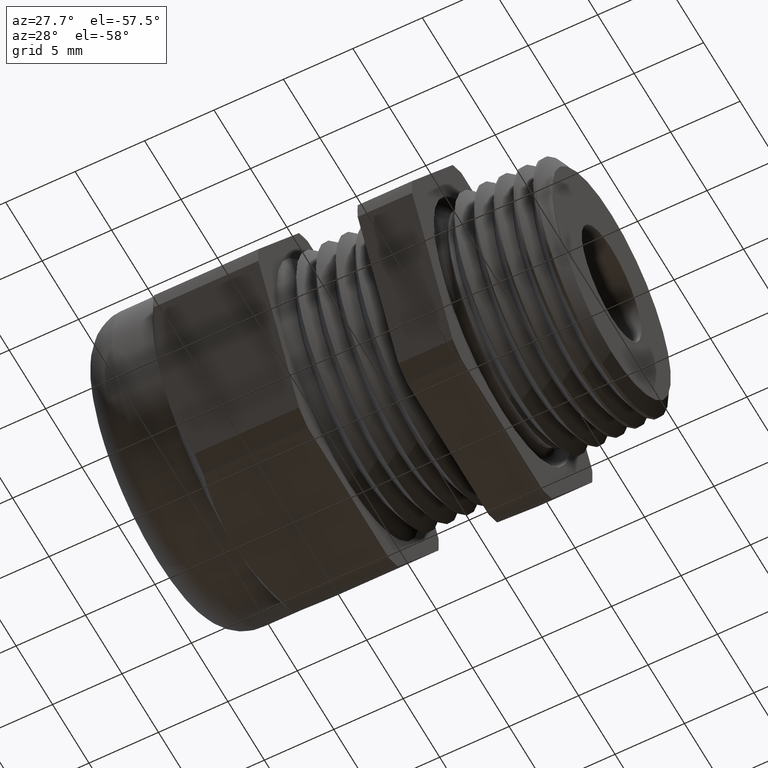
[diagram: clean part render]
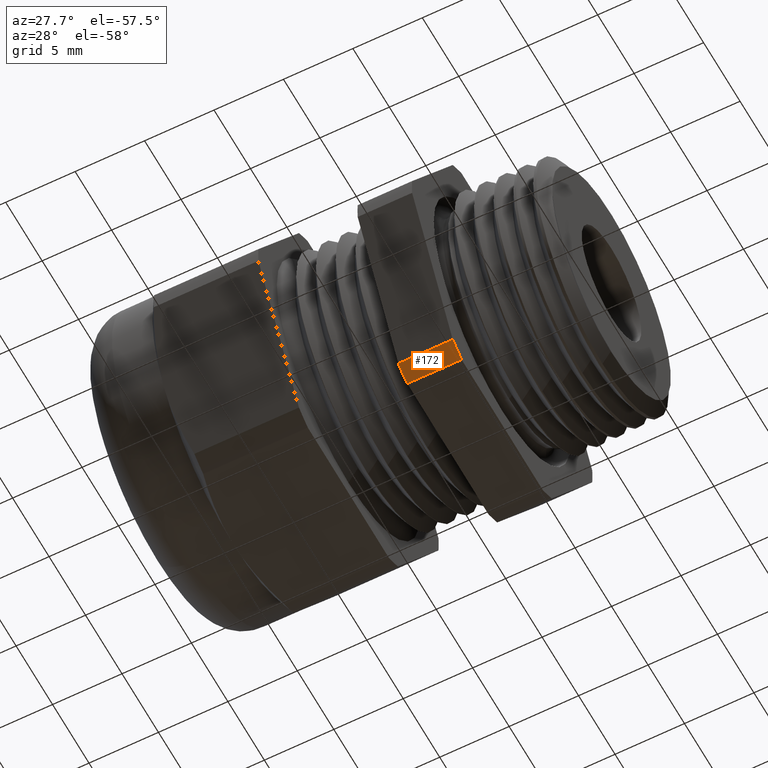
[diagram: same view with one face highlighted and labeled with its STEP entity id]
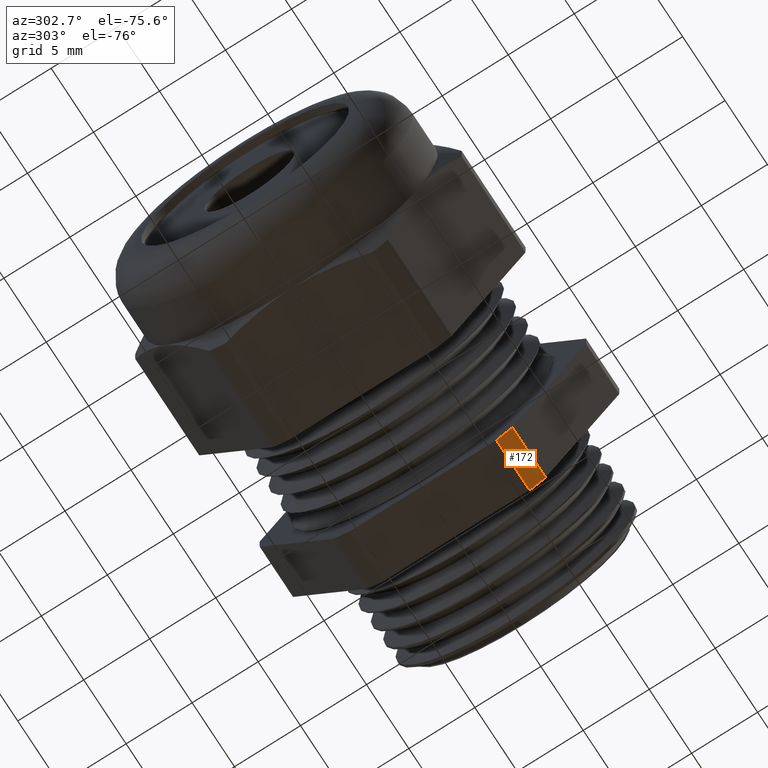
[diagram: same view with one face highlighted and labeled with its STEP entity id]
A machine part, auxiliary view. The second image highlights one B-rep face of the part: STEP entity #172.
A second angle (auxiliary view) of the same face is appended — the face is thin or edge-on in the first view.
In plain terms, the highlighted cylindrical surface (partial cylindrical patch) has radius 12.3749 mm, axis along (-1, 0, 0).
Its self-contained STEP definition (entity closure, byte-faithful):
#163 = EDGE_CURVE ( 'NONE', #164, #1734, #2873, .T. ) ;
#164 = VERTEX_POINT ( 'NONE', #2865 ) ;
#165 = ORIENTED_EDGE ( 'NONE', *, *, #191, .T. ) ;
#167 = VERTEX_POINT ( 'NONE', #2863 ) ;
#168 = EDGE_CURVE ( 'NONE', #167, #164, #2914, .T. ) ;
#169 = ORIENTED_EDGE ( 'NONE', *, *, #168, .F. ) ;
#170 = ORIENTED_EDGE ( 'NONE', *, *, #163, .F. ) ;
#171 = EDGE_LOOP ( 'NONE', ( #170, #169, #165, #192 ) ) ;
#172 = ADVANCED_FACE ( 'NONE', ( #2909 ), #2908, .T. ) ;
#191 = EDGE_CURVE ( 'NONE', #167, #1575, #2936, .T. ) ;
#192 = ORIENTED_EDGE ( 'NONE', *, *, #1738, .T. ) ;
#1178 = DIRECTION ( 'NONE',  ( 0.0000000000000000000, 0.0000000000000000000, 1.000000000000000000 ) ) ;
#1179 = DIRECTION ( 'NONE',  ( -1.000000000000000000, 0.0000000000000000000, 0.0000000000000000000 ) ) ;
#1180 = CARTESIAN_POINT ( 'NONE',  ( 0.0000000000000000000, 0.0000000000000000000, 0.0000000000000000000 ) ) ;
#1181 = AXIS2_PLACEMENT_3D ( 'NONE', #1180, #1179, #1178 ) ;
#1182 = CIRCLE ( 'NONE', #1181, 0.4872000000000000200 ) ;
#1183 = CARTESIAN_POINT ( 'NONE',  ( 0.0000000000000000000, -0.2670182247938400200, -0.4075108681102214100 ) ) ;
#1189 = CARTESIAN_POINT ( 'NONE',  ( 0.0000000000000000000, -0.2194056517047815700, -0.4350000000000000000 ) ) ;
#1575 = VERTEX_POINT ( 'NONE', #1189 ) ;
#1734 = VERTEX_POINT ( 'NONE', #1183 ) ;
#1738 = EDGE_CURVE ( 'NONE', #1575, #1734, #1182, .T. ) ;
#2863 = CARTESIAN_POINT ( 'NONE',  ( -0.1542288557213930500, -0.2194056517047814900, -0.4350000000000001600 ) ) ;
#2865 = CARTESIAN_POINT ( 'NONE',  ( -0.1542288557213930500, -0.2670182247938400200, -0.4075108681102214100 ) ) ;
#2866 = DIRECTION ( 'NONE',  ( 1.000000000000000000, 0.0000000000000000000, 0.0000000000000000000 ) ) ;
#2867 = VECTOR ( 'NONE', #2866, 39.37007874015748100 ) ;
#2868 = CARTESIAN_POINT ( 'NONE',  ( -2.154289792128107500, -0.2670182247938400200, -0.4075108681102214100 ) ) ;
#2873 = LINE ( 'NONE', #2868, #2867 ) ;
#2904 = DIRECTION ( 'NONE',  ( 0.0000000000000000000, 0.0000000000000000000, 1.000000000000000000 ) ) ;
#2905 = DIRECTION ( 'NONE',  ( -1.000000000000000000, 0.0000000000000000000, 0.0000000000000000000 ) ) ;
#2906 = CARTESIAN_POINT ( 'NONE',  ( -0.7238591030180623300, 0.0000000000000000000, 0.0000000000000000000 ) ) ;
#2907 = AXIS2_PLACEMENT_3D ( 'NONE', #2906, #2905, #2904 ) ;
#2908 = CYLINDRICAL_SURFACE ( 'NONE', #2907, 0.4872000000000000200 ) ;
#2909 = FACE_OUTER_BOUND ( 'NONE', #171, .T. ) ;
#2910 = DIRECTION ( 'NONE',  ( 0.0000000000000000000, 0.0000000000000000000, 1.000000000000000000 ) ) ;
#2911 = DIRECTION ( 'NONE',  ( -1.000000000000000000, 0.0000000000000000000, 0.0000000000000000000 ) ) ;
#2912 = CARTESIAN_POINT ( 'NONE',  ( -0.1542288557213930500, 0.0000000000000000000, 0.0000000000000000000 ) ) ;
#2913 = AXIS2_PLACEMENT_3D ( 'NONE', #2912, #2911, #2910 ) ;
#2914 = CIRCLE ( 'NONE', #2913, 0.4872000000000000200 ) ;
#2929 = DIRECTION ( 'NONE',  ( 1.000000000000000000, 0.0000000000000000000, 0.0000000000000000000 ) ) ;
#2930 = VECTOR ( 'NONE', #2929, 39.37007874015748100 ) ;
#2931 = CARTESIAN_POINT ( 'NONE',  ( -2.154289792128107500, -0.2194056517047815700, -0.4350000000000000000 ) ) ;
#2936 = LINE ( 'NONE', #2931, #2930 ) ;